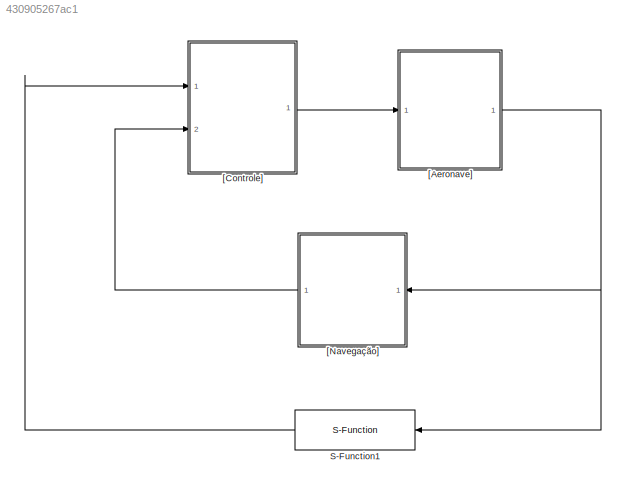
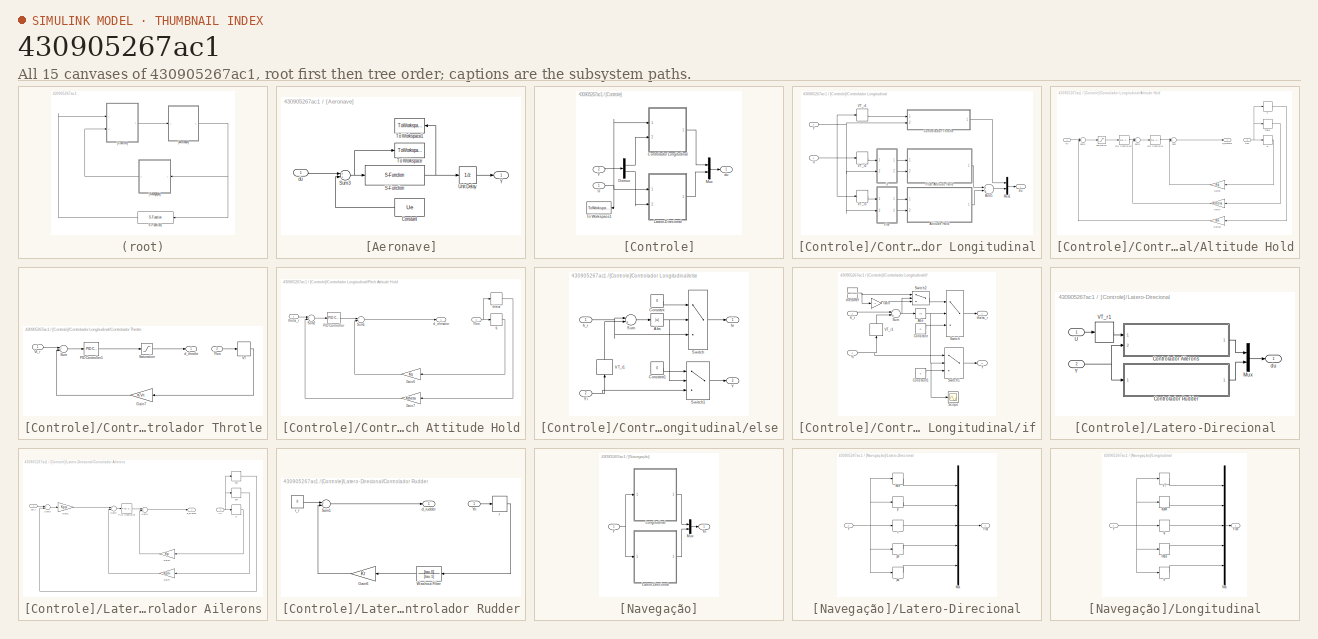
[diagram: thumbnail index - all 15 canvases of the model, root first then tree order]
MODEL slx_430905267ac1
KIND model
CONFIG AbsTol = auto
CONFIG FixedStep = 0.01
CONFIG MaxStep = auto
CONFIG MinStep = auto
CONFIG RelTol = 1e-3
CONFIG SampleTimeConstraint = Unconstrained
CONFIG Solver = ode4
CONFIG SolverMode = Auto
CONFIG SolverName = ode4
CONFIG StartTime = 0.0
CONFIG StopTime = inf
BLOCK [S-Function] S-Function1
  EnableBusSupport = off
  FunctionName = Guidance
  Parameters = WP, lambda
  Ports = [1, 1]
  SFunctionDeploymentMode = off
BLOCK [SubSystem] [Aeronave]
  Ports = [1, 1]
  RequestExecContextInheritance = off
  Variant = off
BLOCK [Constant] [Aeronave]/Constant
  Value = Ue
BLOCK [S-Function] [Aeronave]/S-Function
  EnableBusSupport = off
  FunctionName = sfunction_piper
  Parameters = par_gen,par_aero,par_prop, Xe
  Ports = [1, 1]
  SFunctionDeploymentMode = off
BLOCK [Sum] [Aeronave]/Sum3
  InputSameDT = off
  OutDataTypeStr = Inherit: Inherit via internal rule
  Ports = [2, 1]
  SaturateOnIntegerOverflow = off
BLOCK [ToWorkspace] [Aeronave]/To Workspace
  MaxDataPoints = inf
  Ports = [1]
  SampleTime = -1
  SaveFormat = Timeseries
  VariableName = U
BLOCK [ToWorkspace] [Aeronave]/To Workspace1
  MaxDataPoints = inf
  Ports = [1]
  SampleTime = -1
  SaveFormat = Timeseries
  VariableName = Y
BLOCK [UnitDelay] [Aeronave]/Unit Delay
  InputProcessing = Elements as channels (sample based)
  SampleTime = -1
BLOCK [Outport] [Aeronave]/Y
  IconDisplay = Port number
BLOCK [Inport] [Aeronave]/du
  IconDisplay = Port number
BLOCK [SubSystem] [Controle]
  Ports = [2, 1]
  RequestExecContextInheritance = off
  Variant = off
BLOCK [SubSystem] [Controle]/Controlador Longitudinal
  Ports = [2, 1]
  RequestExecContextInheritance = off
  Variant = off
BLOCK [Sum] [Controle]/Controlador Longitudinal/Add1
  InputSameDT = off
  OutDataTypeStr = Inherit: Inherit via internal rule
  Ports = [2, 1]
  SaturateOnIntegerOverflow = off
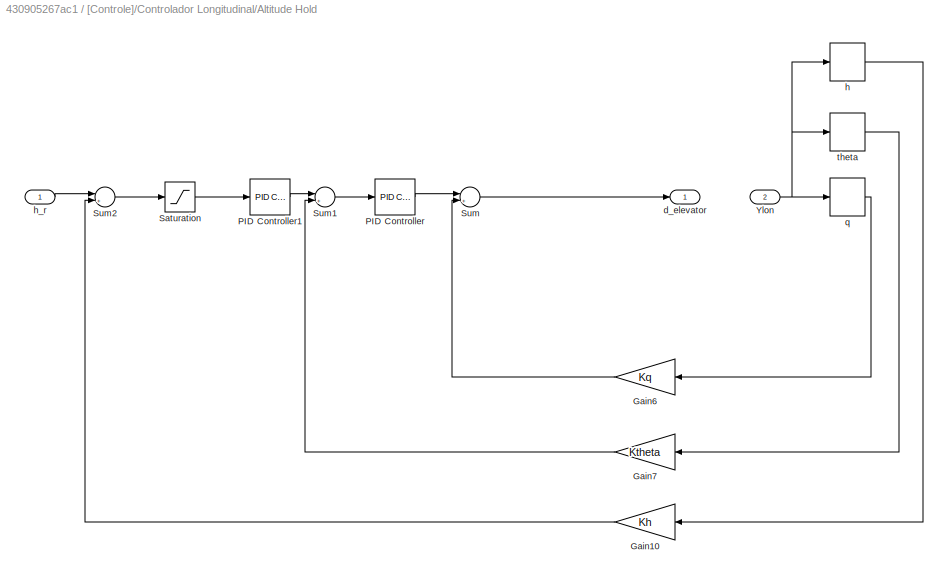
BLOCK [SubSystem] [Controle]/Controlador Longitudinal/Altitude Hold
  Ports = [2, 1]
  RequestExecContextInheritance = off
  Variant = off
BLOCK [Gain] [Controle]/Controlador Longitudinal/Altitude Hold/Gain10
  Gain = Kh
  OutDataTypeStr = Inherit: Inherit via internal rule
  ParamDataTypeStr = Inherit: Inherit via internal rule
  SaturateOnIntegerOverflow = off
BLOCK [Gain] [Controle]/Controlador Longitudinal/Altitude Hold/Gain6
  Gain = Kq
  OutDataTypeStr = Inherit: Inherit via internal rule
  ParamDataTypeStr = Inherit: Inherit via internal rule
  SaturateOnIntegerOverflow = off
BLOCK [Gain] [Controle]/Controlador Longitudinal/Altitude Hold/Gain7
  Gain = Ktheta
  OutDataTypeStr = Inherit: Inherit via internal rule
  ParamDataTypeStr = Inherit: Inherit via internal rule
  SaturateOnIntegerOverflow = off
BLOCK [Reference] [Controle]/Controlador Longitudinal/Altitude Hold/PID Controller  REF=simulink/Continuous/PID Controller
  Ports = [1, 1]
  SourceBlock = simulink/Continuous/PID Controller
  SourceType = PID 1dof
BLOCK [Reference] [Controle]/Controlador Longitudinal/Altitude Hold/PID Controller1  REF=simulink/Continuous/PID Controller
  Ports = [1, 1]
  SourceBlock = simulink/Continuous/PID Controller
  SourceType = PID 1dof
BLOCK [Saturate] [Controle]/Controlador Longitudinal/Altitude Hold/Saturation
  InputPortMap = u0
  LowerLimit = -5.0
  Ports = [1, 1]
  UpperLimit = +5.0
BLOCK [Sum] [Controle]/Controlador Longitudinal/Altitude Hold/Sum
  InputSameDT = off
  Inputs = |+-
  OutDataTypeStr = Inherit: Inherit via internal rule
  Ports = [2, 1]
  SaturateOnIntegerOverflow = off
BLOCK [Sum] [Controle]/Controlador Longitudinal/Altitude Hold/Sum1
  InputSameDT = off
  Inputs = |+-
  OutDataTypeStr = Inherit: Inherit via internal rule
  Ports = [2, 1]
  SaturateOnIntegerOverflow = off
BLOCK [Sum] [Controle]/Controlador Longitudinal/Altitude Hold/Sum2
  InputSameDT = off
  Inputs = |+-
  OutDataTypeStr = Inherit: Inherit via internal rule
  Ports = [2, 1]
  SaturateOnIntegerOverflow = off
BLOCK [Inport] [Controle]/Controlador Longitudinal/Altitude Hold/Ylon
  IconDisplay = Port number
  Port = 2
BLOCK [Outport] [Controle]/Controlador Longitudinal/Altitude Hold/d_elevator
  IconDisplay = Port number
BLOCK [Selector] [Controle]/Controlador Longitudinal/Altitude Hold/h
  IndexOptions = Index vector (dialog)
  Indices = [5]
  InputPortWidth = 5
  OutputSizes = 1
  Ports = [1, 1]
BLOCK [Inport] [Controle]/Controlador Longitudinal/Altitude Hold/h_r
  IconDisplay = Port number
BLOCK [Selector] [Controle]/Controlador Longitudinal/Altitude Hold/q
  IndexOptions = Index vector (dialog)
  Indices = [3]
  InputPortWidth = 5
  OutputSizes = 1
  Ports = [1, 1]
BLOCK [Selector] [Controle]/Controlador Longitudinal/Altitude Hold/theta
  IndexOptions = Index vector (dialog)
  Indices = [4]
  InputPortWidth = 5
  OutputSizes = 1
  Ports = [1, 1]
BLOCK [SubSystem] [Controle]/Controlador Longitudinal/Controlador Throtle
  Ports = [2, 1]
  RequestExecContextInheritance = off
  Variant = off
BLOCK [Gain] [Controle]/Controlador Longitudinal/Controlador Throtle/Gain7
  Gain = KVt
  OutDataTypeStr = Inherit: Inherit via internal rule
  ParamDataTypeStr = Inherit: Inherit via internal rule
  SaturateOnIntegerOverflow = off
BLOCK [Reference] [Controle]/Controlador Longitudinal/Controlador Throtle/PID Controller1  REF=simulink/Continuous/PID Controller
  Ports = [1, 1]
  SourceBlock = simulink/Continuous/PID Controller
  SourceType = PID 1dof
BLOCK [Saturate] [Controle]/Controlador Longitudinal/Controlador Throtle/Saturation
  InputPortMap = u0
  LowerLimit = -Ue(1)
  Ports = [1, 1]
  UpperLimit = 1
BLOCK [Sum] [Controle]/Controlador Longitudinal/Controlador Throtle/Sum
  InputSameDT = off
  Inputs = +-
  OutDataTypeStr = Inherit: Inherit via internal rule
  Ports = [2, 1]
  SaturateOnIntegerOverflow = off
BLOCK [Selector] [Controle]/Controlador Longitudinal/Controlador Throtle/VT
  IndexOptions = Index vector (dialog)
  Indices = 1
  InputPortWidth = 5
  OutputSizes = 1
  Ports = [1, 1]
BLOCK [Inport] [Controle]/Controlador Longitudinal/Controlador Throtle/Vt_r
  IconDisplay = Port number
BLOCK [Inport] [Controle]/Controlador Longitudinal/Controlador Throtle/Ylon
  IconDisplay = Port number
  Port = 2
BLOCK [Outport] [Controle]/Controlador Longitudinal/Controlador Throtle/d_throtle
  IconDisplay = Port number
BLOCK [Mux] [Controle]/Controlador Longitudinal/Mux1
  DisplayOption = bar
  Inputs = 2
  Ports = [2, 1]
BLOCK [SubSystem] [Controle]/Controlador Longitudinal/Pitch Attitude Hold
  Ports = [2, 1]
  RequestExecContextInheritance = off
  Variant = off
BLOCK [Gain] [Controle]/Controlador Longitudinal/Pitch Attitude Hold/Gain6
  Gain = Kq
  OutDataTypeStr = Inherit: Inherit via internal rule
  ParamDataTypeStr = Inherit: Inherit via internal rule
  SaturateOnIntegerOverflow = off
BLOCK [Gain] [Controle]/Controlador Longitudinal/Pitch Attitude Hold/Gain7
  Gain = Ktheta
  OutDataTypeStr = Inherit: Inherit via internal rule
  ParamDataTypeStr = Inherit: Inherit via internal rule
  SaturateOnIntegerOverflow = off
BLOCK [Reference] [Controle]/Controlador Longitudinal/Pitch Attitude Hold/PID Controller  REF=simulink/Continuous/PID Controller
  Ports = [1, 1]
  SourceBlock = simulink/Continuous/PID Controller
  SourceType = PID 1dof
BLOCK [Sum] [Controle]/Controlador Longitudinal/Pitch Attitude Hold/Sum1
  InputSameDT = off
  Inputs = +-
  OutDataTypeStr = Inherit: Inherit via internal rule
  Ports = [2, 1]
  SaturateOnIntegerOverflow = off
BLOCK [Sum] [Controle]/Controlador Longitudinal/Pitch Attitude Hold/Sum2
  InputSameDT = off
  Inputs = +-
  OutDataTypeStr = Inherit: Inherit via internal rule
  Ports = [2, 1]
  SaturateOnIntegerOverflow = off
BLOCK [Inport] [Controle]/Controlador Longitudinal/Pitch Attitude Hold/Ylon
  IconDisplay = Port number
  Port = 2
BLOCK [Outport] [Controle]/Controlador Longitudinal/Pitch Attitude Hold/d_elevator
  IconDisplay = Port number
BLOCK [Selector] [Controle]/Controlador Longitudinal/Pitch Attitude Hold/q
  IndexOptions = Index vector (dialog)
  Indices = [3]
  InputPortWidth = 5
  OutputSizes = 1
  Ports = [1, 1]
BLOCK [Selector] [Controle]/Controlador Longitudinal/Pitch Attitude Hold/theta
  IndexOptions = Index vector (dialog)
  Indices = [4]
  InputPortWidth = 5
  OutputSizes = 1
  Ports = [1, 1]
BLOCK [Inport] [Controle]/Controlador Longitudinal/Pitch Attitude Hold/theta_r
  IconDisplay = Port number
BLOCK [Inport] [Controle]/Controlador Longitudinal/U
  IconDisplay = Port number
BLOCK [Selector] [Controle]/Controlador Longitudinal/VT_r1
  IndexOptions = Index vector (dialog)
  Indices = [1]
  InputPortWidth = 3
  OutputSizes = 1
  Ports = [1, 1]
BLOCK [Selector] [Controle]/Controlador Longitudinal/VT_r2
  IndexOptions = Index vector (dialog)
  Indices = [2]
  InputPortWidth = 3
  OutputSizes = 1
  Ports = [1, 1]
BLOCK [Selector] [Controle]/Controlador Longitudinal/VT_r3
  IndexOptions = Index vector (dialog)
  Indices = [2]
  InputPortWidth = 3
  OutputSizes = 1
  Ports = [1, 1]
BLOCK [Inport] [Controle]/Controlador Longitudinal/Y
  IconDisplay = Port number
  Port = 2
BLOCK [Outport] [Controle]/Controlador Longitudinal/du
  IconDisplay = Port number
BLOCK [SubSystem] [Controle]/Controlador Longitudinal/else
  Ports = [2, 2]
  RequestExecContextInheritance = off
  Variant = off
BLOCK [Abs] [Controle]/Controlador Longitudinal/else/Abs
  SaturateOnIntegerOverflow = off
  ZeroCross = off
BLOCK [Constant] [Controle]/Controlador Longitudinal/else/Constant
  Value = 0
BLOCK [Constant] [Controle]/Controlador Longitudinal/else/Constant1
  Value = 0
BLOCK [Sum] [Controle]/Controlador Longitudinal/else/Sum
  InputSameDT = off
  Inputs = |+-
  OutDataTypeStr = Inherit: Inherit via internal rule
  Ports = [2, 1]
  SaturateOnIntegerOverflow = off
BLOCK [Switch] [Controle]/Controlador Longitudinal/else/Switch
  Criteria = u2 > Threshold
  InputSameDT = off
  SaturateOnIntegerOverflow = off
  Threshold = 5
  ZeroCross = off
BLOCK [Switch] [Controle]/Controlador Longitudinal/else/Switch1
  Criteria = u2 > Threshold
  InputSameDT = off
  SaturateOnIntegerOverflow = off
  Threshold = 5
  ZeroCross = off
BLOCK [Selector] [Controle]/Controlador Longitudinal/else/VT_r1
  IndexOptions = Index vector (dialog)
  Indices = [5]
  InputPortWidth = 5
  OutputSizes = 1
  Ports = [1, 1]
BLOCK [Outport] [Controle]/Controlador Longitudinal/else/Y
  IconDisplay = Port number
  Port = 2
BLOCK [Inport] [Controle]/Controlador Longitudinal/else/Yi
  IconDisplay = Port number
  Port = 2
BLOCK [Inport] [Controle]/Controlador Longitudinal/else/h_r
  IconDisplay = Port number
BLOCK [Outport] [Controle]/Controlador Longitudinal/else/hr
  IconDisplay = Port number
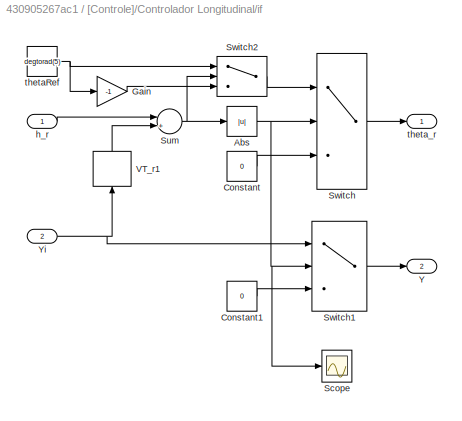
BLOCK [SubSystem] [Controle]/Controlador Longitudinal/if
  Ports = [2, 2]
  RequestExecContextInheritance = off
  Variant = off
BLOCK [Abs] [Controle]/Controlador Longitudinal/if/Abs
  SaturateOnIntegerOverflow = off
  ZeroCross = off
BLOCK [Constant] [Controle]/Controlador Longitudinal/if/Constant
  Value = 0
BLOCK [Constant] [Controle]/Controlador Longitudinal/if/Constant1
  Value = 0
BLOCK [Gain] [Controle]/Controlador Longitudinal/if/Gain
  Gain = -1
  OutDataTypeStr = Inherit: Inherit via internal rule
  ParamDataTypeStr = Inherit: Inherit via internal rule
  SaturateOnIntegerOverflow = off
BLOCK [Scope] [Controle]/Controlador Longitudinal/if/Scope
  Ports = [1]
  ScopeSpecificationString = Simulink.scopes.TimeScopeBlockCfg('CurrentConfiguration', extmgr.ConfigurationSet(extmgr.Configuration('Core','General UI',true),extmgr.Configuration('Core','Source UI',true),extmgr.Configuration('Sources','WiredSimulink',true,'DataLoggingVariableName','ScopeData1'),extmgr.Configuration('Visuals','Time Domain',true,'SerializedDisplays',{struct('MinYLimReal','-1.00000','MaxYLimReal','1.00000','YLab...<+1415ch>
BLOCK [Sum] [Controle]/Controlador Longitudinal/if/Sum
  InputSameDT = off
  Inputs = |+-
  OutDataTypeStr = Inherit: Inherit via internal rule
  Ports = [2, 1]
  SaturateOnIntegerOverflow = off
BLOCK [Switch] [Controle]/Controlador Longitudinal/if/Switch
  Criteria = u2 > Threshold
  InputSameDT = off
  SaturateOnIntegerOverflow = off
  Threshold = 5
  ZeroCross = off
BLOCK [Switch] [Controle]/Controlador Longitudinal/if/Switch1
  Criteria = u2 > Threshold
  InputSameDT = off
  SaturateOnIntegerOverflow = off
  Threshold = 5
  ZeroCross = off
BLOCK [Switch] [Controle]/Controlador Longitudinal/if/Switch2
  Criteria = u2 > Threshold
  InputSameDT = off
  SaturateOnIntegerOverflow = off
  ZeroCross = off
BLOCK [Selector] [Controle]/Controlador Longitudinal/if/VT_r1
  IndexOptions = Index vector (dialog)
  Indices = [5]
  InputPortWidth = 5
  OutputSizes = 1
  Ports = [1, 1]
BLOCK [Outport] [Controle]/Controlador Longitudinal/if/Y
  IconDisplay = Port number
  Port = 2
BLOCK [Inport] [Controle]/Controlador Longitudinal/if/Yi
  IconDisplay = Port number
  Port = 2
BLOCK [Inport] [Controle]/Controlador Longitudinal/if/h_r
  IconDisplay = Port number
BLOCK [Constant] [Controle]/Controlador Longitudinal/if/thetaRef
  Value = degtorad(5)
BLOCK [Outport] [Controle]/Controlador Longitudinal/if/theta_r
  IconDisplay = Port number
BLOCK [Demux] [Controle]/Demux
  DisplayOption = bar
  Outputs = 2
  Ports = [1, 2]
BLOCK [SubSystem] [Controle]/Latero-Direcional
  Ports = [2, 1]
  RequestExecContextInheritance = off
  Variant = off
BLOCK [SubSystem] [Controle]/Latero-Direcional/Controlador Ailerons
  Ports = [2, 1]
  RequestExecContextInheritance = off
  Variant = off
BLOCK [Gain] [Controle]/Latero-Direcional/Controlador Ailerons/Gain1
  Gain = Kpsi
  OutDataTypeStr = Inherit: Inherit via internal rule
  ParamDataTypeStr = Inherit: Inherit via internal rule
  SaturateOnIntegerOverflow = off
BLOCK [Gain] [Controle]/Latero-Direcional/Controlador Ailerons/Gain6
  Gain = Kp
  OutDataTypeStr = Inherit: Inherit via internal rule
  ParamDataTypeStr = Inherit: Inherit via internal rule
  SaturateOnIntegerOverflow = off
BLOCK [Gain] [Controle]/Latero-Direcional/Controlador Ailerons/Gain7
  Gain = Kphi
  OutDataTypeStr = Inherit: Inherit via internal rule
  ParamDataTypeStr = Inherit: Inherit via internal rule
  SaturateOnIntegerOverflow = off
BLOCK [Reference] [Controle]/Latero-Direcional/Controlador Ailerons/PID Controller  REF=simulink/Continuous/PID Controller
  Ports = [1, 1]
  SourceBlock = simulink/Continuous/PID Controller
  SourceType = PID 1dof
BLOCK [Sum] [Controle]/Latero-Direcional/Controlador Ailerons/Sum1
  InputSameDT = off
  Inputs = +-
  OutDataTypeStr = Inherit: Inherit via internal rule
  Ports = [2, 1]
  SaturateOnIntegerOverflow = off
BLOCK [Sum] [Controle]/Latero-Direcional/Controlador Ailerons/Sum2
  InputSameDT = off
  Inputs = +-
  OutDataTypeStr = Inherit: Inherit via internal rule
  Ports = [2, 1]
  SaturateOnIntegerOverflow = off
BLOCK [Sum] [Controle]/Latero-Direcional/Controlador Ailerons/Sum3
  InputSameDT = off
  Inputs = +-
  OutDataTypeStr = Inherit: Inherit via internal rule
  Ports = [2, 1]
  SaturateOnIntegerOverflow = off
BLOCK [Inport] [Controle]/Latero-Direcional/Controlador Ailerons/Yn
  IconDisplay = Port number
  Port = 2
BLOCK [Outport] [Controle]/Latero-Direcional/Controlador Ailerons/d_aileron
  IconDisplay = Port number
BLOCK [Selector] [Controle]/Latero-Direcional/Controlador Ailerons/p
  IndexOptions = Index vector (dialog)
  Indices = [2]
  InputPortWidth = 5
  OutputSizes = 1
  Ports = [1, 1]
BLOCK [Selector] [Controle]/Latero-Direcional/Controlador Ailerons/phi
  IndexOptions = Index vector (dialog)
  Indices = [4]
  InputPortWidth = 5
  OutputSizes = 1
  Ports = [1, 1]
BLOCK [Selector] [Controle]/Latero-Direcional/Controlador Ailerons/psi
  IndexOptions = Index vector (dialog)
  Indices = [5]
  InputPortWidth = 5
  OutputSizes = 1
  Ports = [1, 1]
BLOCK [Inport] [Controle]/Latero-Direcional/Controlador Ailerons/psi_r
  IconDisplay = Port number
BLOCK [SubSystem] [Controle]/Latero-Direcional/Controlador Rudder
  Ports = [1, 1]
  RequestExecContextInheritance = off
  Variant = off
BLOCK [Gain] [Controle]/Latero-Direcional/Controlador Rudder/Gain6
  Gain = Kr
  OutDataTypeStr = Inherit: Inherit via internal rule
  ParamDataTypeStr = Inherit: Inherit via internal rule
  SaturateOnIntegerOverflow = off
BLOCK [Sum] [Controle]/Latero-Direcional/Controlador Rudder/Sum1
  InputSameDT = off
  Inputs = +-
  OutDataTypeStr = Inherit: Inherit via internal rule
  Ports = [2, 1]
  SaturateOnIntegerOverflow = off
BLOCK [TransferFcn] [Controle]/Latero-Direcional/Controlador Rudder/Washout Filter
  Denominator = [tau 1]
  Numerator = [tau 0]
BLOCK [Inport] [Controle]/Latero-Direcional/Controlador Rudder/Yn
  IconDisplay = Port number
BLOCK [Outport] [Controle]/Latero-Direcional/Controlador Rudder/d_rudder
  IconDisplay = Port number
BLOCK [Selector] [Controle]/Latero-Direcional/Controlador Rudder/r
  IndexOptions = Index vector (dialog)
  Indices = [3]
  InputPortWidth = 5
  OutputSizes = 1
  Ports = [1, 1]
BLOCK [Constant] [Controle]/Latero-Direcional/Controlador Rudder/r_r
  Value = 0
BLOCK [Mux] [Controle]/Latero-Direcional/Mux
  DisplayOption = bar
  Inputs = 2
  Ports = [2, 1]
BLOCK [Inport] [Controle]/Latero-Direcional/U
  IconDisplay = Port number
BLOCK [Selector] [Controle]/Latero-Direcional/VT_r1
  IndexOptions = Index vector (dialog)
  Indices = [3]
  InputPortWidth = 3
  OutputSizes = 1
  Ports = [1, 1]
BLOCK [Inport] [Controle]/Latero-Direcional/Y
  IconDisplay = Port number
  Port = 2
BLOCK [Outport] [Controle]/Latero-Direcional/du
  IconDisplay = Port number
BLOCK [Mux] [Controle]/Mux
  DisplayOption = bar
  Inputs = 2
  Ports = [2, 1]
BLOCK [ToWorkspace] [Controle]/To Workspace1
  MaxDataPoints = inf
  Ports = [1]
  SampleTime = -1
  SaveFormat = Timeseries
  VariableName = step
BLOCK [Inport] [Controle]/U
  IconDisplay = Port number
BLOCK [Inport] [Controle]/Y
  IconDisplay = Port number
  Port = 2
BLOCK [Outport] [Controle]/du
  IconDisplay = Port number
BLOCK [SubSystem] [Navegação]
  Ports = [1, 1]
  RequestExecContextInheritance = off
  Variant = off
BLOCK [SubSystem] [Navegação]/Latero-Direcional
  Ports = [1, 1]
  RequestExecContextInheritance = off
  Variant = off
BLOCK [Mux] [Navegação]/Latero-Direcional/Mux
  DisplayOption = bar
  Inputs = 5
  Ports = [5, 1]
BLOCK [Inport] [Navegação]/Latero-Direcional/Y
  IconDisplay = Port number
BLOCK [Outport] [Navegação]/Latero-Direcional/Ylat
  IconDisplay = Port number
BLOCK [Selector] [Navegação]/Latero-Direcional/beta
  IndexOptions = Index vector (dialog)
  Indices = [3]
  InputPortWidth = 12
  OutputSizes = 1
  Ports = [1, 1]
BLOCK [Selector] [Navegação]/Latero-Direcional/p
  IndexOptions = Index vector (dialog)
  Indices = [4]
  InputPortWidth = 12
  OutputSizes = 1
  Ports = [1, 1]
BLOCK [Selector] [Navegação]/Latero-Direcional/phi
  IndexOptions = Index vector (dialog)
  Indices = [7]
  InputPortWidth = 12
  OutputSizes = 1
  Ports = [1, 1]
BLOCK [Selector] [Navegação]/Latero-Direcional/psi
  IndexOptions = Index vector (dialog)
  Indices = [9]
  InputPortWidth = 12
  OutputSizes = 1
  Ports = [1, 1]
BLOCK [Selector] [Navegação]/Latero-Direcional/r
  IndexOptions = Index vector (dialog)
  Indices = [6]
  InputPortWidth = 12
  OutputSizes = 1
  Ports = [1, 1]
BLOCK [SubSystem] [Navegação]/Longitudinal
  Ports = [1, 1]
  RequestExecContextInheritance = off
  Variant = off
BLOCK [Mux] [Navegação]/Longitudinal/Mux
  DisplayOption = bar
  Inputs = 5
  Ports = [5, 1]
BLOCK [Selector] [Navegação]/Longitudinal/VT
  IndexOptions = Index vector (dialog)
  Indices = [1]
  InputPortWidth = 12
  OutputSizes = 1
  Ports = [1, 1]
BLOCK [Inport] [Navegação]/Longitudinal/Y
  IconDisplay = Port number
BLOCK [Outport] [Navegação]/Longitudinal/Ylon
  IconDisplay = Port number
BLOCK [Selector] [Navegação]/Longitudinal/alpha
  IndexOptions = Index vector (dialog)
  Indices = [2]
  InputPortWidth = 12
  OutputSizes = 1
  Ports = [1, 1]
BLOCK [Selector] [Navegação]/Longitudinal/h
  IndexOptions = Index vector (dialog)
  Indices = [12]
  InputPortWidth = 12
  OutputSizes = 1
  Ports = [1, 1]
BLOCK [Selector] [Navegação]/Longitudinal/q
  IndexOptions = Index vector (dialog)
  Indices = [5]
  InputPortWidth = 12
  OutputSizes = 1
  Ports = [1, 1]
BLOCK [Selector] [Navegação]/Longitudinal/theta
  IndexOptions = Index vector (dialog)
  Indices = [8]
  InputPortWidth = 12
  OutputSizes = 1
  Ports = [1, 1]
BLOCK [Mux] [Navegação]/Mux
  DisplayOption = bar
  Inputs = 2
  Ports = [2, 1]
BLOCK [Inport] [Navegação]/Y
  IconDisplay = Port number
BLOCK [Outport] [Navegação]/Yn
  IconDisplay = Port number
LINE S-Function1:1 -> [Controle]:1
LINE [Aeronave]/Constant:1 -> [Aeronave]/Sum3:2
NET [Aeronave]/S-Function:1 -> [Aeronave]/To Workspace1:1, [Aeronave]/Unit Delay:1
NET [Aeronave]/Sum3:1 -> [Aeronave]/S-Function:1, [Aeronave]/To Workspace:1
LINE [Aeronave]/Unit Delay:1 -> [Aeronave]/Y:1
LINE [Aeronave]/du:1 -> [Aeronave]/Sum3:1
NET [Aeronave]:1 -> S-Function1:1, [Navegação]:1
LINE [Controle]/Controlador Longitudinal/Add1:1 -> [Controle]/Controlador Longitudinal/Mux1:2
LINE [Controle]/Controlador Longitudinal/Altitude Hold/Gain10:1 -> [Controle]/Controlador Longitudinal/Altitude Hold/Sum2:2
LINE [Controle]/Controlador Longitudinal/Altitude Hold/Gain6:1 -> [Controle]/Controlador Longitudinal/Altitude Hold/Sum:2
LINE [Controle]/Controlador Longitudinal/Altitude Hold/Gain7:1 -> [Controle]/Controlador Longitudinal/Altitude Hold/Sum1:2
LINE [Controle]/Controlador Longitudinal/Altitude Hold/PID Controller1:1 -> [Controle]/Controlador Longitudinal/Altitude Hold/Sum1:1
LINE [Controle]/Controlador Longitudinal/Altitude Hold/PID Controller:1 -> [Controle]/Controlador Longitudinal/Altitude Hold/Sum:1
LINE [Controle]/Controlador Longitudinal/Altitude Hold/Saturation:1 -> [Controle]/Controlador Longitudinal/Altitude Hold/PID Controller1:1
LINE [Controle]/Controlador Longitudinal/Altitude Hold/Sum1:1 -> [Controle]/Controlador Longitudinal/Altitude Hold/PID Controller:1
LINE [Controle]/Controlador Longitudinal/Altitude Hold/Sum2:1 -> [Controle]/Controlador Longitudinal/Altitude Hold/Saturation:1
LINE [Controle]/Controlador Longitudinal/Altitude Hold/Sum:1 -> [Controle]/Controlador Longitudinal/Altitude Hold/d_elevator:1
NET [Controle]/Controlador Longitudinal/Altitude Hold/Ylon:1 -> [Controle]/Controlador Longitudinal/Altitude Hold/h:1, [Controle]/Controlador Longitudinal/Altitude Hold/q:1, [Controle]/Controlador Longitudinal/Altitude Hold/theta:1
LINE [Controle]/Controlador Longitudinal/Altitude Hold/h:1 -> [Controle]/Controlador Longitudinal/Altitude Hold/Gain10:1
LINE [Controle]/Controlador Longitudinal/Altitude Hold/h_r:1 -> [Controle]/Controlador Longitudinal/Altitude Hold/Sum2:1
LINE [Controle]/Controlador Longitudinal/Altitude Hold/q:1 -> [Controle]/Controlador Longitudinal/Altitude Hold/Gain6:1
LINE [Controle]/Controlador Longitudinal/Altitude Hold/theta:1 -> [Controle]/Controlador Longitudinal/Altitude Hold/Gain7:1
LINE [Controle]/Controlador Longitudinal/Altitude Hold:1 -> [Controle]/Controlador Longitudinal/Add1:2
LINE [Controle]/Controlador Longitudinal/Controlador Throtle/Gain7:1 -> [Controle]/Controlador Longitudinal/Controlador Throtle/Sum:2
LINE [Controle]/Controlador Longitudinal/Controlador Throtle/PID Controller1:1 -> [Controle]/Controlador Longitudinal/Controlador Throtle/Saturation:1
LINE [Controle]/Controlador Longitudinal/Controlador Throtle/Saturation:1 -> [Controle]/Controlador Longitudinal/Controlador Throtle/d_throtle:1
LINE [Controle]/Controlador Longitudinal/Controlador Throtle/Sum:1 -> [Controle]/Controlador Longitudinal/Controlador Throtle/PID Controller1:1
LINE [Controle]/Controlador Longitudinal/Controlador Throtle/VT:1 -> [Controle]/Controlador Longitudinal/Controlador Throtle/Gain7:1
LINE [Controle]/Controlador Longitudinal/Controlador Throtle/Vt_r:1 -> [Controle]/Controlador Longitudinal/Controlador Throtle/Sum:1
LINE [Controle]/Controlador Longitudinal/Controlador Throtle/Ylon:1 -> [Controle]/Controlador Longitudinal/Controlador Throtle/VT:1
LINE [Controle]/Controlador Longitudinal/Controlador Throtle:1 -> [Controle]/Controlador Longitudinal/Mux1:1
LINE [Controle]/Controlador Longitudinal/Mux1:1 -> [Controle]/Controlador Longitudinal/du:1
LINE [Controle]/Controlador Longitudinal/Pitch Attitude Hold/Gain6:1 -> [Controle]/Controlador Longitudinal/Pitch Attitude Hold/Sum1:2
LINE [Controle]/Controlador Longitudinal/Pitch Attitude Hold/Gain7:1 -> [Controle]/Controlador Longitudinal/Pitch Attitude Hold/Sum2:2
LINE [Controle]/Controlador Longitudinal/Pitch Attitude Hold/PID Controller:1 -> [Controle]/Controlador Longitudinal/Pitch Attitude Hold/Sum1:1
LINE [Controle]/Controlador Longitudinal/Pitch Attitude Hold/Sum1:1 -> [Controle]/Controlador Longitudinal/Pitch Attitude Hold/d_elevator:1
LINE [Controle]/Controlador Longitudinal/Pitch Attitude Hold/Sum2:1 -> [Controle]/Controlador Longitudinal/Pitch Attitude Hold/PID Controller:1
NET [Controle]/Controlador Longitudinal/Pitch Attitude Hold/Ylon:1 -> [Controle]/Controlador Longitudinal/Pitch Attitude Hold/q:1, [Controle]/Controlador Longitudinal/Pitch Attitude Hold/theta:1
LINE [Controle]/Controlador Longitudinal/Pitch Attitude Hold/q:1 -> [Controle]/Controlador Longitudinal/Pitch Attitude Hold/Gain6:1
LINE [Controle]/Controlador Longitudinal/Pitch Attitude Hold/theta:1 -> [Controle]/Controlador Longitudinal/Pitch Attitude Hold/Gain7:1
LINE [Controle]/Controlador Longitudinal/Pitch Attitude Hold/theta_r:1 -> [Controle]/Controlador Longitudinal/Pitch Attitude Hold/Sum2:1
LINE [Controle]/Controlador Longitudinal/Pitch Attitude Hold:1 -> [Controle]/Controlador Longitudinal/Add1:1
NET [Controle]/Controlador Longitudinal/U:1 -> [Controle]/Controlador Longitudinal/VT_r1:1, [Controle]/Controlador Longitudinal/VT_r2:1, [Controle]/Controlador Longitudinal/VT_r3:1
LINE [Controle]/Controlador Longitudinal/VT_r1:1 -> [Controle]/Controlador Longitudinal/Controlador Throtle:1
LINE [Controle]/Controlador Longitudinal/VT_r2:1 -> [Controle]/Controlador Longitudinal/if:1
LINE [Controle]/Controlador Longitudinal/VT_r3:1 -> [Controle]/Controlador Longitudinal/else:1
NET [Controle]/Controlador Longitudinal/Y:1 -> [Controle]/Controlador Longitudinal/Controlador Throtle:2, [Controle]/Controlador Longitudinal/else:2, [Controle]/Controlador Longitudinal/if:2
NET [Controle]/Controlador Longitudinal/else/Abs:1 -> [Controle]/Controlador Longitudinal/else/Switch1:2, [Controle]/Controlador Longitudinal/else/Switch:2
LINE [Controle]/Controlador Longitudinal/else/Constant1:1 -> [Controle]/Controlador Longitudinal/else/Switch1:1
LINE [Controle]/Controlador Longitudinal/else/Constant:1 -> [Controle]/Controlador Longitudinal/else/Switch:1
LINE [Controle]/Controlador Longitudinal/else/Sum:1 -> [Controle]/Controlador Longitudinal/else/Abs:1
LINE [Controle]/Controlador Longitudinal/else/Switch1:1 -> [Controle]/Controlador Longitudinal/else/Y:1
LINE [Controle]/Controlador Longitudinal/else/Switch:1 -> [Controle]/Controlador Longitudinal/else/hr:1
LINE [Controle]/Controlador Longitudinal/else/VT_r1:1 -> [Controle]/Controlador Longitudinal/else/Sum:2
NET [Controle]/Controlador Longitudinal/else/Yi:1 -> [Controle]/Controlador Longitudinal/else/Switch1:3, [Controle]/Controlador Longitudinal/else/VT_r1:1
NET [Controle]/Controlador Longitudinal/else/h_r:1 -> [Controle]/Controlador Longitudinal/else/Sum:1, [Controle]/Controlador Longitudinal/else/Switch:3
LINE [Controle]/Controlador Longitudinal/else:1 -> [Controle]/Controlador Longitudinal/Altitude Hold:1
LINE [Controle]/Controlador Longitudinal/else:2 -> [Controle]/Controlador Longitudinal/Altitude Hold:2
NET [Controle]/Controlador Longitudinal/if/Abs:1 -> [Controle]/Controlador Longitudinal/if/Scope:1, [Controle]/Controlador Longitudinal/if/Switch1:2, [Controle]/Controlador Longitudinal/if/Switch:2
LINE [Controle]/Controlador Longitudinal/if/Constant1:1 -> [Controle]/Controlador Longitudinal/if/Switch1:3
LINE [Controle]/Controlador Longitudinal/if/Constant:1 -> [Controle]/Controlador Longitudinal/if/Switch:3
LINE [Controle]/Controlador Longitudinal/if/Gain:1 -> [Controle]/Controlador Longitudinal/if/Switch2:3
NET [Controle]/Controlador Longitudinal/if/Sum:1 -> [Controle]/Controlador Longitudinal/if/Abs:1, [Controle]/Controlador Longitudinal/if/Switch2:2
LINE [Controle]/Controlador Longitudinal/if/Switch1:1 -> [Controle]/Controlador Longitudinal/if/Y:1
LINE [Controle]/Controlador Longitudinal/if/Switch2:1 -> [Controle]/Controlador Longitudinal/if/Switch:1
LINE [Controle]/Controlador Longitudinal/if/Switch:1 -> [Controle]/Controlador Longitudinal/if/theta_r:1
LINE [Controle]/Controlador Longitudinal/if/VT_r1:1 -> [Controle]/Controlador Longitudinal/if/Sum:2
NET [Controle]/Controlador Longitudinal/if/Yi:1 -> [Controle]/Controlador Longitudinal/if/Switch1:1, [Controle]/Controlador Longitudinal/if/VT_r1:1
LINE [Controle]/Controlador Longitudinal/if/h_r:1 -> [Controle]/Controlador Longitudinal/if/Sum:1
NET [Controle]/Controlador Longitudinal/if/thetaRef:1 -> [Controle]/Controlador Longitudinal/if/Gain:1, [Controle]/Controlador Longitudinal/if/Switch2:1
LINE [Controle]/Controlador Longitudinal/if:1 -> [Controle]/Controlador Longitudinal/Pitch Attitude Hold:1
LINE [Controle]/Controlador Longitudinal/if:2 -> [Controle]/Controlador Longitudinal/Pitch Attitude Hold:2
LINE [Controle]/Controlador Longitudinal:1 -> [Controle]/Mux:1
LINE [Controle]/Demux:1 -> [Controle]/Controlador Longitudinal:2
LINE [Controle]/Demux:2 -> [Controle]/Latero-Direcional:2
LINE [Controle]/Latero-Direcional/Controlador Ailerons/Gain1:1 -> [Controle]/Latero-Direcional/Controlador Ailerons/Sum2:1
LINE [Controle]/Latero-Direcional/Controlador Ailerons/Gain6:1 -> [Controle]/Latero-Direcional/Controlador Ailerons/Sum1:2
LINE [Controle]/Latero-Direcional/Controlador Ailerons/Gain7:1 -> [Controle]/Latero-Direcional/Controlador Ailerons/Sum2:2
LINE [Controle]/Latero-Direcional/Controlador Ailerons/PID Controller:1 -> [Controle]/Latero-Direcional/Controlador Ailerons/Sum1:1
LINE [Controle]/Latero-Direcional/Controlador Ailerons/Sum1:1 -> [Controle]/Latero-Direcional/Controlador Ailerons/d_aileron:1
LINE [Controle]/Latero-Direcional/Controlador Ailerons/Sum2:1 -> [Controle]/Latero-Direcional/Controlador Ailerons/PID Controller:1
LINE [Controle]/Latero-Direcional/Controlador Ailerons/Sum3:1 -> [Controle]/Latero-Direcional/Controlador Ailerons/Gain1:1
NET [Controle]/Latero-Direcional/Controlador Ailerons/Yn:1 -> [Controle]/Latero-Direcional/Controlador Ailerons/p:1, [Controle]/Latero-Direcional/Controlador Ailerons/phi:1, [Controle]/Latero-Direcional/Controlador Ailerons/psi:1
LINE [Controle]/Latero-Direcional/Controlador Ailerons/p:1 -> [Controle]/Latero-Direcional/Controlador Ailerons/Gain6:1
LINE [Controle]/Latero-Direcional/Controlador Ailerons/phi:1 -> [Controle]/Latero-Direcional/Controlador Ailerons/Gain7:1
LINE [Controle]/Latero-Direcional/Controlador Ailerons/psi:1 -> [Controle]/Latero-Direcional/Controlador Ailerons/Sum3:2
LINE [Controle]/Latero-Direcional/Controlador Ailerons/psi_r:1 -> [Controle]/Latero-Direcional/Controlador Ailerons/Sum3:1
LINE [Controle]/Latero-Direcional/Controlador Ailerons:1 -> [Controle]/Latero-Direcional/Mux:1
LINE [Controle]/Latero-Direcional/Controlador Rudder/Gain6:1 -> [Controle]/Latero-Direcional/Controlador Rudder/Sum1:2
LINE [Controle]/Latero-Direcional/Controlador Rudder/Sum1:1 -> [Controle]/Latero-Direcional/Controlador Rudder/d_rudder:1
LINE [Controle]/Latero-Direcional/Controlador Rudder/Washout Filter:1 -> [Controle]/Latero-Direcional/Controlador Rudder/Gain6:1
LINE [Controle]/Latero-Direcional/Controlador Rudder/Yn:1 -> [Controle]/Latero-Direcional/Controlador Rudder/r:1
LINE [Controle]/Latero-Direcional/Controlador Rudder/r:1 -> [Controle]/Latero-Direcional/Controlador Rudder/Washout Filter:1
LINE [Controle]/Latero-Direcional/Controlador Rudder/r_r:1 -> [Controle]/Latero-Direcional/Controlador Rudder/Sum1:1
LINE [Controle]/Latero-Direcional/Controlador Rudder:1 -> [Controle]/Latero-Direcional/Mux:2
LINE [Controle]/Latero-Direcional/Mux:1 -> [Controle]/Latero-Direcional/du:1
LINE [Controle]/Latero-Direcional/U:1 -> [Controle]/Latero-Direcional/VT_r1:1
LINE [Controle]/Latero-Direcional/VT_r1:1 -> [Controle]/Latero-Direcional/Controlador Ailerons:1
NET [Controle]/Latero-Direcional/Y:1 -> [Controle]/Latero-Direcional/Controlador Ailerons:2, [Controle]/Latero-Direcional/Controlador Rudder:1
LINE [Controle]/Latero-Direcional:1 -> [Controle]/Mux:2
LINE [Controle]/Mux:1 -> [Controle]/du:1
NET [Controle]/U:1 -> [Controle]/Controlador Longitudinal:1, [Controle]/Latero-Direcional:1, [Controle]/To Workspace1:1
LINE [Controle]/Y:1 -> [Controle]/Demux:1
LINE [Controle]:1 -> [Aeronave]:1
LINE [Navegação]/Latero-Direcional/Mux:1 -> [Navegação]/Latero-Direcional/Ylat:1
NET [Navegação]/Latero-Direcional/Y:1 -> [Navegação]/Latero-Direcional/beta:1, [Navegação]/Latero-Direcional/p:1, [Navegação]/Latero-Direcional/phi:1, [Navegação]/Latero-Direcional/psi:1, [Navegação]/Latero-Direcional/r:1
LINE [Navegação]/Latero-Direcional/beta:1 -> [Navegação]/Latero-Direcional/Mux:1
LINE [Navegação]/Latero-Direcional/p:1 -> [Navegação]/Latero-Direcional/Mux:2
LINE [Navegação]/Latero-Direcional/phi:1 -> [Navegação]/Latero-Direcional/Mux:4
LINE [Navegação]/Latero-Direcional/psi:1 -> [Navegação]/Latero-Direcional/Mux:5
LINE [Navegação]/Latero-Direcional/r:1 -> [Navegação]/Latero-Direcional/Mux:3
LINE [Navegação]/Latero-Direcional:1 -> [Navegação]/Mux:2
LINE [Navegação]/Longitudinal/Mux:1 -> [Navegação]/Longitudinal/Ylon:1
LINE [Navegação]/Longitudinal/VT:1 -> [Navegação]/Longitudinal/Mux:1
NET [Navegação]/Longitudinal/Y:1 -> [Navegação]/Longitudinal/VT:1, [Navegação]/Longitudinal/alpha:1, [Navegação]/Longitudinal/h:1, [Navegação]/Longitudinal/q:1, [Navegação]/Longitudinal/theta:1
LINE [Navegação]/Longitudinal/alpha:1 -> [Navegação]/Longitudinal/Mux:2
LINE [Navegação]/Longitudinal/h:1 -> [Navegação]/Longitudinal/Mux:5
LINE [Navegação]/Longitudinal/q:1 -> [Navegação]/Longitudinal/Mux:3
LINE [Navegação]/Longitudinal/theta:1 -> [Navegação]/Longitudinal/Mux:4
LINE [Navegação]/Longitudinal:1 -> [Navegação]/Mux:1
LINE [Navegação]/Mux:1 -> [Navegação]/Yn:1
NET [Navegação]/Y:1 -> [Navegação]/Latero-Direcional:1, [Navegação]/Longitudinal:1
LINE [Navegação]:1 -> [Controle]:2
note: NET lines group one-source signal fan-out (src -> all destinations, sorted); 1:1 wires keep LINE
